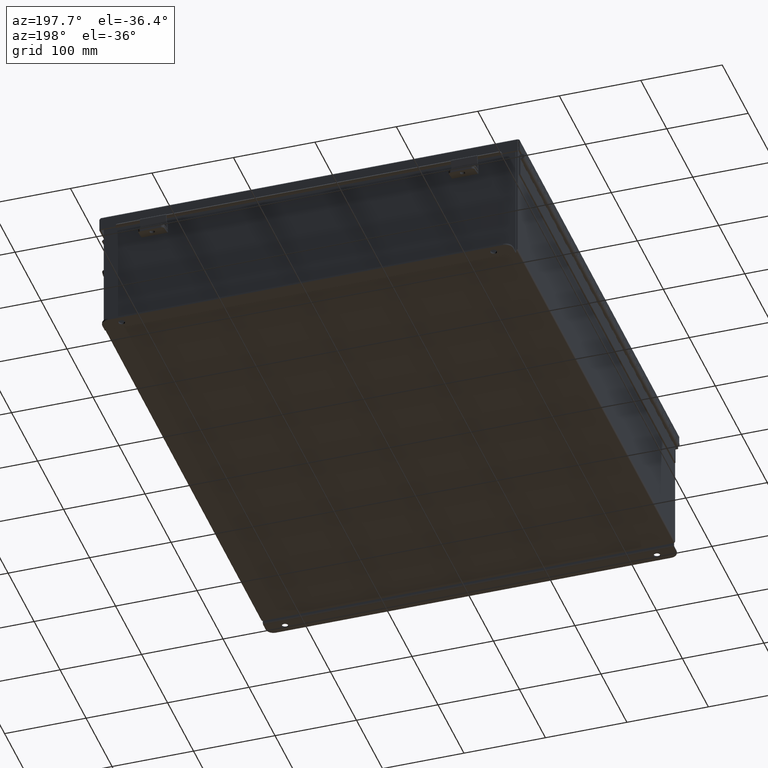
[diagram: clean part render]
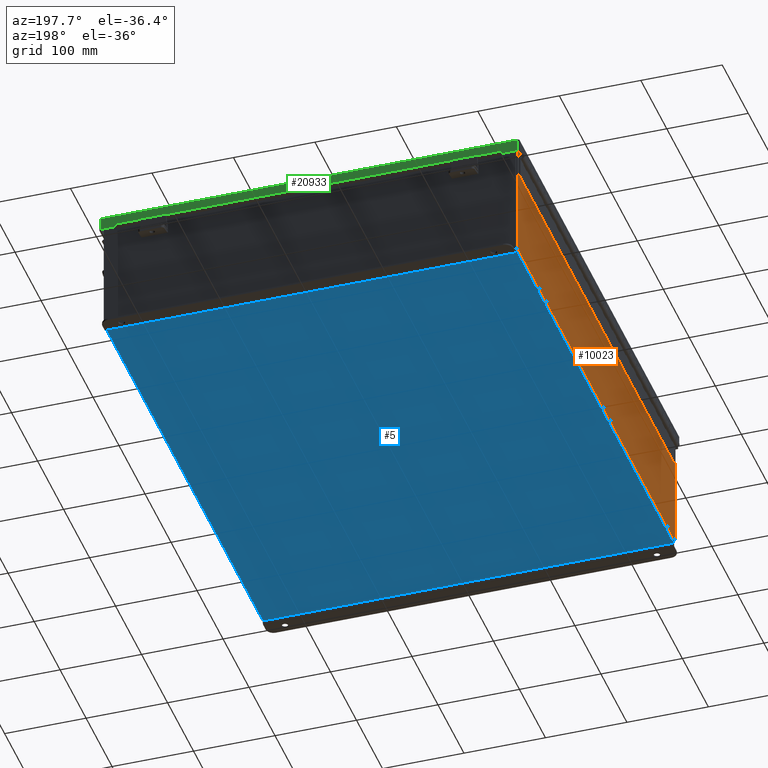
[diagram: same view with three faces highlighted in distinct colors, each labeled with its STEP entity id]
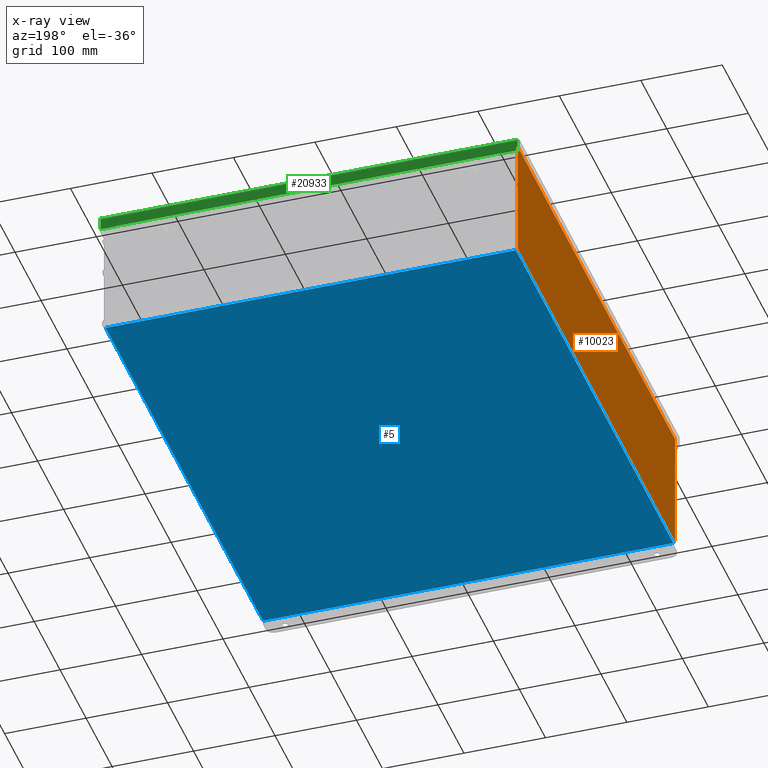
[diagram: x-ray of the same camera — body ghosted, the three highlighted faces saturated]
A machine part, auxiliary view with three faces highlighted in distinct colors.
The next image is the same camera in x-ray (body ghosted, the three faces saturated) — at least one of them is partly hidden behind the body in this view.
Their STEP definitions:

[orange] entity #10023 — the highlighted planar face has unit normal (1, 0, 0).
#246 = ORIENTED_EDGE ( 'NONE', *, *, #7051, .T. ) ;
#838 = PLANE ( 'NONE',  #16102 ) ;
#905 = EDGE_CURVE ( 'NONE', #24656, #19005, #22885, .T. ) ;
#1321 = DIRECTION ( 'NONE',  ( -3.361929640444176300E-015, 3.735477378271307500E-016, 1.000000000000000000 ) ) ;
#1460 = CARTESIAN_POINT ( 'NONE',  ( -10.00000000000000000, 11.92529999999999600, 0.01299999999999985900 ) ) ;
#1571 = DIRECTION ( 'NONE',  ( 0.0000000000000000000, 1.000000000000000000, 0.0000000000000000000 ) ) ;
#2741 = CARTESIAN_POINT ( 'NONE',  ( -10.00000000000000000, 0.0000000000000000000, -3.388345214641706500E-014 ) ) ;
#4658 = DIRECTION ( 'NONE',  ( 1.000000000000000000, 0.0000000000000000000, 3.361929640444175900E-015 ) ) ;
#5054 = CARTESIAN_POINT ( 'NONE',  ( -10.00000000000000000, -11.92530000000000000, -2.942712510675223700E-014 ) ) ;
#5989 = VECTOR ( 'NONE', #12006, 39.37007874015748100 ) ;
#6915 = VECTOR ( 'NONE', #1321, 39.37007874015748100 ) ;
#7051 = EDGE_CURVE ( 'NONE', #14996, #19005, #11053, .T. ) ;
#7084 = VECTOR ( 'NONE', #1571, 39.37007874015748100 ) ;
#7293 = ORIENTED_EDGE ( 'NONE', *, *, #905, .F. ) ;
#9008 = ORIENTED_EDGE ( 'NONE', *, *, #15164, .T. ) ;
#10023 = ADVANCED_FACE ( 'NONE', ( #17891 ), #838, .F. ) ;
#10457 = ORIENTED_EDGE ( 'NONE', *, *, #21613, .T. ) ;
#10924 = CARTESIAN_POINT ( 'NONE',  ( -10.00000000000002000, 11.92529999999999600, 5.837599999999999200 ) ) ;
#11053 = LINE ( 'NONE', #19699, #5989 ) ;
#11779 = CARTESIAN_POINT ( 'NONE',  ( -10.00000000000000000, 11.92529999999999600, 0.01299999999999985900 ) ) ;
#12006 = DIRECTION ( 'NONE',  ( 3.361929640444176300E-015, 0.0000000000000000000, -1.000000000000000000 ) ) ;
#12125 = CARTESIAN_POINT ( 'NONE',  ( -10.00000000000002000, -11.92529999999999500, 5.837599999999999200 ) ) ;
#14817 = DIRECTION ( 'NONE',  ( -0.0000000000000000000, 1.000000000000000000, -0.0000000000000000000 ) ) ;
#14996 = VERTEX_POINT ( 'NONE', #10924 ) ;
#15164 = EDGE_CURVE ( 'NONE', #24656, #16777, #17155, .T. ) ;
#16102 = AXIS2_PLACEMENT_3D ( 'NONE', #2741, #4658, #18045 ) ;
#16777 = VERTEX_POINT ( 'NONE', #12125 ) ;
#16885 = CARTESIAN_POINT ( 'NONE',  ( -10.00000000000002000, -11.92529999999999600, 5.837599999999999200 ) ) ;
#17155 = LINE ( 'NONE', #5054, #6915 ) ;
#17330 = LINE ( 'NONE', #16885, #7084 ) ;
#17790 = VECTOR ( 'NONE', #14817, 39.37007874015748100 ) ;
#17891 = FACE_OUTER_BOUND ( 'NONE', #24097, .T. ) ;
#18045 = DIRECTION ( 'NONE',  ( 3.361929640444175900E-015, 0.0000000000000000000, -1.000000000000000000 ) ) ;
#19005 = VERTEX_POINT ( 'NONE', #11779 ) ;
#19699 = CARTESIAN_POINT ( 'NONE',  ( -10.00000000000000000, 11.92529999999999600, -3.388345214641706500E-014 ) ) ;
#21613 = EDGE_CURVE ( 'NONE', #16777, #14996, #17330, .T. ) ;
#22885 = LINE ( 'NONE', #1460, #17790 ) ;
#24097 = EDGE_LOOP ( 'NONE', ( #10457, #246, #7293, #9008 ) ) ;
#24410 = CARTESIAN_POINT ( 'NONE',  ( -10.00000000000000000, -11.92529999999999600, 0.01299999999999985900 ) ) ;
#24656 = VERTEX_POINT ( 'NONE', #24410 ) ;

[blue] entity #5 — the highlighted planar face has unit normal (0, 0, -1).
#5 = ADVANCED_FACE ( 'NONE', ( #5437 ), #21053, .T. ) ;
#362 = CARTESIAN_POINT ( 'NONE',  ( 9.912300000000000100, -11.92530000000000000, -0.07470000000000000300 ) ) ;
#1084 = EDGE_CURVE ( 'NONE', #10007, #20253, #14158, .T. ) ;
#1403 = CARTESIAN_POINT ( 'NONE',  ( -9.912300000000000100, 11.92529999999999600, -0.07470000000000000300 ) ) ;
#1876 = CARTESIAN_POINT ( 'NONE',  ( -10.00000000000000000, -11.92530000000000000, -0.07470000000000000300 ) ) ;
#3287 = DIRECTION ( 'NONE',  ( -1.000000000000000000, 0.0000000000000000000, -0.0000000000000000000 ) ) ;
#4451 = CARTESIAN_POINT ( 'NONE',  ( -10.00000000000000000, 11.92529999999999600, -0.07470000000000000300 ) ) ;
#4954 = ORIENTED_EDGE ( 'NONE', *, *, #19113, .F. ) ;
#5070 = VECTOR ( 'NONE', #21549, 39.37007874015748100 ) ;
#5437 = FACE_OUTER_BOUND ( 'NONE', #11451, .T. ) ;
#5676 = LINE ( 'NONE', #19651, #5070 ) ;
#5807 = DIRECTION ( 'NONE',  ( -0.0000000000000000000, 1.000000000000000000, -0.0000000000000000000 ) ) ;
#6210 = LINE ( 'NONE', #17297, #16424 ) ;
#6921 = CARTESIAN_POINT ( 'NONE',  ( 9.912300000000000100, 11.92529999999999300, -0.07469999999999994700 ) ) ;
#8501 = VERTEX_POINT ( 'NONE', #1403 ) ;
#9027 = VECTOR ( 'NONE', #9506, 39.37007874015748100 ) ;
#9265 = LINE ( 'NONE', #4451, #13771 ) ;
#9506 = DIRECTION ( 'NONE',  ( 1.000000000000000000, 0.0000000000000000000, 0.0000000000000000000 ) ) ;
#9522 = DIRECTION ( 'NONE',  ( 0.0000000000000000000, 0.0000000000000000000, -1.000000000000000000 ) ) ;
#10007 = VERTEX_POINT ( 'NONE', #23670 ) ;
#11198 = ORIENTED_EDGE ( 'NONE', *, *, #14116, .T. ) ;
#11224 = VERTEX_POINT ( 'NONE', #6921 ) ;
#11451 = EDGE_LOOP ( 'NONE', ( #4954, #12954, #14916, #11198 ) ) ;
#12954 = ORIENTED_EDGE ( 'NONE', *, *, #16713, .T. ) ;
#13771 = VECTOR ( 'NONE', #15919, 39.37007874015748100 ) ;
#14116 = EDGE_CURVE ( 'NONE', #10007, #8501, #6210, .T. ) ;
#14158 = LINE ( 'NONE', #1876, #9027 ) ;
#14916 = ORIENTED_EDGE ( 'NONE', *, *, #1084, .F. ) ;
#15919 = DIRECTION ( 'NONE',  ( -1.000000000000000000, -0.0000000000000000000, -0.0000000000000000000 ) ) ;
#16424 = VECTOR ( 'NONE', #5807, 39.37007874015748100 ) ;
#16713 = EDGE_CURVE ( 'NONE', #11224, #20253, #5676, .T. ) ;
#17297 = CARTESIAN_POINT ( 'NONE',  ( -9.912300000000000100, -11.92530000000000000, -0.07469999999999994700 ) ) ;
#19113 = EDGE_CURVE ( 'NONE', #11224, #8501, #9265, .T. ) ;
#19134 = CARTESIAN_POINT ( 'NONE',  ( 0.0000000000000000000, 0.0000000000000000000, -0.07470000000000000300 ) ) ;
#19651 = CARTESIAN_POINT ( 'NONE',  ( 9.912300000000000100, 11.92529999999999600, -0.07469999999999994700 ) ) ;
#20253 = VERTEX_POINT ( 'NONE', #362 ) ;
#20480 = AXIS2_PLACEMENT_3D ( 'NONE', #19134, #9522, #3287 ) ;
#21053 = PLANE ( 'NONE',  #20480 ) ;
#21549 = DIRECTION ( 'NONE',  ( -0.0000000000000000000, -1.000000000000000000, -0.0000000000000000000 ) ) ;
#23670 = CARTESIAN_POINT ( 'NONE',  ( -9.912300000000000100, -11.92529999999999600, -0.07469999999999994700 ) ) ;

[green] entity #20933 — the highlighted planar face has unit normal (-0, -1, -0).
#335 = CARTESIAN_POINT ( 'NONE',  ( 0.0000000000000000000, 12.15624999999999800, -4.370956789862821100E-014 ) ) ;
#578 = CARTESIAN_POINT ( 'NONE',  ( 9.324478932188171100, 12.15625000000000000, 0.5967115427318815400 ) ) ;
#760 = VERTEX_POINT ( 'NONE', #578 ) ;
#1698 = VERTEX_POINT ( 'NONE', #20516 ) ;
#1822 = VECTOR ( 'NONE', #4598, 39.37007874015748100 ) ;
#2253 = DIRECTION ( 'NONE',  ( 0.0000000000000000000, -3.569293475308532400E-015, -1.000000000000000000 ) ) ;
#2542 = CARTESIAN_POINT ( 'NONE',  ( 9.324478932188171100, 12.15625000000000400, 0.5967115427318815400 ) ) ;
#3131 = VERTEX_POINT ( 'NONE', #21462 ) ;
#3404 = VECTOR ( 'NONE', #6177, 39.37007874015748100 ) ;
#3616 = DIRECTION ( 'NONE',  ( 1.000000000000000000, 3.215538059845590000E-030, 3.362274453740340600E-018 ) ) ;
#4356 = VECTOR ( 'NONE', #13962, 39.37007874015748100 ) ;
#4408 = EDGE_CURVE ( 'NONE', #760, #3131, #20242, .T. ) ;
#4598 = DIRECTION ( 'NONE',  ( 1.000000000000000000, 3.215975411700707400E-030, -0.0000000000000000000 ) ) ;
#4893 = EDGE_CURVE ( 'NONE', #20566, #21306, #23500, .T. ) ;
#5183 = ORIENTED_EDGE ( 'NONE', *, *, #4408, .F. ) ;
#5190 = DIRECTION ( 'NONE',  ( 7.009925220121354700E-014, 1.401985044024265100E-013, -1.000000000000000000 ) ) ;
#5366 = ORIENTED_EDGE ( 'NONE', *, *, #4893, .T. ) ;
#6177 = DIRECTION ( 'NONE',  ( -0.0000000000000000000, 3.569293475308532400E-015, 1.000000000000000000 ) ) ;
#6856 = LINE ( 'NONE', #16080, #1822 ) ;
#7616 = EDGE_CURVE ( 'NONE', #3131, #21306, #8621, .T. ) ;
#8621 = LINE ( 'NONE', #8883, #9212 ) ;
#8883 = CARTESIAN_POINT ( 'NONE',  ( -9.324478932188164000, 12.15625000000000400, 0.5967115427318815400 ) ) ;
#9212 = VECTOR ( 'NONE', #22328, 39.37007874015748100 ) ;
#10115 = LINE ( 'NONE', #12243, #19760 ) ;
#10723 = FACE_OUTER_BOUND ( 'NONE', #24184, .T. ) ;
#10855 = CARTESIAN_POINT ( 'NONE',  ( 9.324478932188171100, 12.15625000000000000, 0.6122999999999994000 ) ) ;
#11199 = CARTESIAN_POINT ( 'NONE',  ( 6.402768735150616900E-018, 12.15625000000000200, 0.6122999999999994000 ) ) ;
#12243 = CARTESIAN_POINT ( 'NONE',  ( -10.07447893218816400, 12.15625000000000000, -4.370956789862821100E-014 ) ) ;
#12275 = LINE ( 'NONE', #11199, #16211 ) ;
#12417 = ORIENTED_EDGE ( 'NONE', *, *, #17056, .F. ) ;
#12563 = DIRECTION ( 'NONE',  ( 1.000000000000000000, 3.215538059845590000E-030, 3.362274453740340600E-018 ) ) ;
#12713 = VERTEX_POINT ( 'NONE', #22184 ) ;
#13660 = DIRECTION ( 'NONE',  ( -3.347543324056399800E-030, -1.000000000000000000, 3.569293475308532400E-015 ) ) ;
#13836 = ORIENTED_EDGE ( 'NONE', *, *, #24440, .T. ) ;
#13962 = DIRECTION ( 'NONE',  ( -1.000000000000000000, -3.215975411700707400E-030, -0.0000000000000000000 ) ) ;
#14188 = DIRECTION ( 'NONE',  ( 0.0000000000000000000, 3.569293475308532400E-015, 1.000000000000000000 ) ) ;
#15181 = ORIENTED_EDGE ( 'NONE', *, *, #17416, .F. ) ;
#15962 = EDGE_CURVE ( 'NONE', #18752, #16490, #12275, .T. ) ;
#16068 = ORIENTED_EDGE ( 'NONE', *, *, #20411, .F. ) ;
#16080 = CARTESIAN_POINT ( 'NONE',  ( 10.15625000000003900, 12.15625000000000000, 0.01300000000000010700 ) ) ;
#16211 = VECTOR ( 'NONE', #3616, 39.37007874015748100 ) ;
#16490 = VERTEX_POINT ( 'NONE', #16735 ) ;
#16510 = ORIENTED_EDGE ( 'NONE', *, *, #15962, .T. ) ;
#16735 = CARTESIAN_POINT ( 'NONE',  ( 10.07447893218817300, 12.15625000000000000, 0.6122999999999994000 ) ) ;
#17056 = EDGE_CURVE ( 'NONE', #18752, #760, #23947, .T. ) ;
#17416 = EDGE_CURVE ( 'NONE', #12713, #16490, #18087, .T. ) ;
#17754 = ORIENTED_EDGE ( 'NONE', *, *, #7616, .F. ) ;
#18087 = LINE ( 'NONE', #21529, #3404 ) ;
#18239 = VECTOR ( 'NONE', #5190, 39.37007874015748100 ) ;
#18752 = VERTEX_POINT ( 'NONE', #22528 ) ;
#18999 = VECTOR ( 'NONE', #12563, 39.37007874015748100 ) ;
#19413 = PLANE ( 'NONE',  #24802 ) ;
#19760 = VECTOR ( 'NONE', #14188, 39.37007874015748100 ) ;
#20242 = LINE ( 'NONE', #2542, #4356 ) ;
#20337 = CARTESIAN_POINT ( 'NONE',  ( -10.07447893218816400, 12.15625000000000000, 0.6123000000000005100 ) ) ;
#20411 = EDGE_CURVE ( 'NONE', #1698, #12713, #6856, .T. ) ;
#20516 = CARTESIAN_POINT ( 'NONE',  ( -10.07447893218816400, 12.15625000000000000, 0.01300000000000010700 ) ) ;
#20566 = VERTEX_POINT ( 'NONE', #20337 ) ;
#20933 = ADVANCED_FACE ( 'NONE', ( #10723 ), #19413, .F. ) ;
#21306 = VERTEX_POINT ( 'NONE', #21595 ) ;
#21462 = CARTESIAN_POINT ( 'NONE',  ( -9.324478932188164000, 12.15625000000000000, 0.5967115427318815400 ) ) ;
#21529 = CARTESIAN_POINT ( 'NONE',  ( 10.07447893218817300, 12.15625000000000000, 0.0000000000000000000 ) ) ;
#21595 = CARTESIAN_POINT ( 'NONE',  ( -9.324478932188165800, 12.15625000000000000, 0.6123000000000005100 ) ) ;
#22184 = CARTESIAN_POINT ( 'NONE',  ( 10.07447893218817300, 12.15625000000000000, 0.01300000000000010700 ) ) ;
#22328 = DIRECTION ( 'NONE',  ( -7.009925220121077000E-014, -1.401985044024209900E-013, 1.000000000000000000 ) ) ;
#22528 = CARTESIAN_POINT ( 'NONE',  ( 9.324478932188171100, 12.15625000000000000, 0.6122999999999994000 ) ) ;
#23500 = LINE ( 'NONE', #24093, #18999 ) ;
#23947 = LINE ( 'NONE', #10855, #18239 ) ;
#24093 = CARTESIAN_POINT ( 'NONE',  ( 6.402768735150616900E-018, 12.15625000000000200, 0.6122999999999994000 ) ) ;
#24184 = EDGE_LOOP ( 'NONE', ( #12417, #16510, #15181, #16068, #13836, #5366, #17754, #5183 ) ) ;
#24440 = EDGE_CURVE ( 'NONE', #1698, #20566, #10115, .T. ) ;
#24802 = AXIS2_PLACEMENT_3D ( 'NONE', #335, #13660, #2253 ) ;